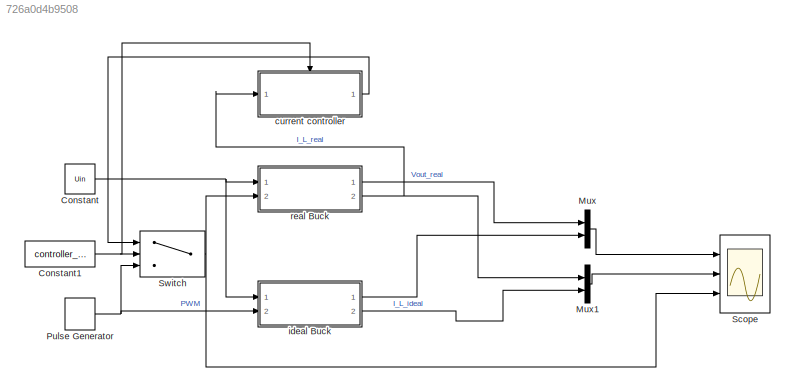
MODEL slx_726a0d4b9508
KIND model
CONFIG AbsTol = auto
CONFIG FixedStep = auto
CONFIG MaxStep = auto
CONFIG MinStep = auto
CONFIG RelTol = 1e-3
CONFIG SampleTimeConstraint = Unconstrained
CONFIG Solver = VariableStepAuto
CONFIG SolverMode = Auto
CONFIG SolverName = VariableStepAuto
CONFIG StartTime = 0.0
CONFIG StopTime = 0.01
BLOCK [Constant] Constant
  Value = Uin
BLOCK [Constant] Constant1
  Value = controller_on
BLOCK [Mux] Mux
  DisplayOption = signals
  Inputs = 2
  Ports = [2, 1]
BLOCK [Mux] Mux1
  DisplayOption = signals
  Inputs = 2
  Ports = [2, 1]
BLOCK [DiscretePulseGenerator] Pulse Generator
  Amplitude = Uswitch
  Period = T
  PhaseDelay = T
  Ports = [0, 1]
  PulseType = Time based
  PulseWidth = D*100
BLOCK [Scope] Scope
  NumInputPorts = 3
  Ports = [3]
  ScopeSpecificationString = Simulink.scopes.TimeScopeBlockCfg('CurrentConfiguration', extmgr.ConfigurationSet(extmgr.Configuration('Core','General UI',true),extmgr.Configuration('Core','Source UI',true),extmgr.Configuration('Sources','WiredSimulink',true),extmgr.Configuration('Visuals','Time Domain',true,'SerializedDisplays',{struct('MinYLimReal','-12.37862','MaxYLimReal','111.40759','YLabelReal','','MinYLimMag','0.00000','M...<+2719ch>
BLOCK [Switch] Switch
  InputSameDT = off
  SaturateOnIntegerOverflow = off
  Threshold = 0.5
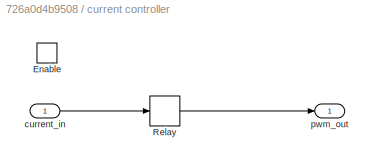
BLOCK [SubSystem] current controller
  Ports = [1, 1, 1]
  RequestExecContextInheritance = off
  Variant = off
BLOCK [EnablePort] current controller/Enable
  Ports = []
BLOCK [Relay] current controller/Relay
  InputProcessing = Elements as channels (sample based)
  OffOutputValue = Uswitch
  OffSwitchValue = 0
  OnOutputValue = 0
  OnSwitchValue = current_sense
BLOCK [Inport] current controller/current_in
  IconDisplay = Port number
BLOCK [Outport] current controller/pwm_out
  IconDisplay = Port number
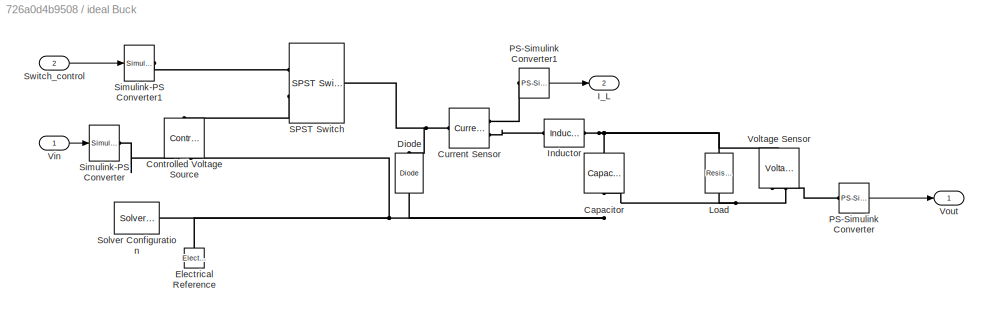
BLOCK [SubSystem] ideal Buck
  Ports = [2, 2]
  RequestExecContextInheritance = off
  Variant = off
BLOCK [Outport] ideal Buck/ Vout
  IconDisplay = Port number
BLOCK [Reference] ideal Buck/Capacitor  REF=fl_lib/Electrical/Electrical Elements/Capacitor
  Ports = [0, 0, 0, 0, 0, 1, 1]
  SourceBlock = fl_lib/Electrical/Electrical Elements/Capacitor
  SourceType = Capacitor
BLOCK [Reference] ideal Buck/Controlled Voltage Source  REF=fl_lib/Electrical/Electrical Sources/Controlled Voltage
Source
  Ports = [0, 0, 0, 0, 0, 1, 2]
  SourceBlock = fl_lib/Electrical/Electrical Sources/Controlled Voltage\nSource
  SourceType = Controlled Voltage\nSource
BLOCK [Reference] ideal Buck/Current Sensor  REF=fl_lib/Electrical/Electrical Sensors/Current Sensor
  Ports = [0, 0, 0, 0, 0, 1, 2]
  SourceBlock = fl_lib/Electrical/Electrical Sensors/Current Sensor
  SourceType = Current Sensor
BLOCK [Reference] ideal Buck/Diode  REF=fl_lib/Electrical/Electrical Elements/Diode
  Ports = [0, 0, 0, 0, 0, 1, 1]
  SourceBlock = fl_lib/Electrical/Electrical Elements/Diode
  SourceType = Diode
BLOCK [Reference] ideal Buck/Electrical Reference  REF=fl_lib/Electrical/Electrical Elements/Electrical Reference
  Ports = [0, 0, 0, 0, 0, 1]
  SourceBlock = fl_lib/Electrical/Electrical Elements/Electrical Reference
  SourceType = Electrical Reference
BLOCK [Outport] ideal Buck/I_L
  IconDisplay = Port number
  Port = 2
BLOCK [Reference] ideal Buck/Inductor  REF=fl_lib/Electrical/Electrical Elements/Inductor
  Ports = [0, 0, 0, 0, 0, 1, 1]
  SourceBlock = fl_lib/Electrical/Electrical Elements/Inductor
  SourceType = Inductor
BLOCK [Reference] ideal Buck/Load  REF=fl_lib/Electrical/Electrical Elements/Resistor
  Ports = [0, 0, 0, 0, 0, 1, 1]
  SourceBlock = fl_lib/Electrical/Electrical Elements/Resistor
  SourceType = Resistor
BLOCK [Reference] ideal Buck/PS-Simulink Converter  REF=nesl_utility/PS-Simulink
Converter
  Ports = [0, 1, 0, 0, 0, 1]
  SourceBlock = nesl_utility/PS-Simulink\nConverter
  SourceType = PS-Simulink\nConverter
BLOCK [Reference] ideal Buck/PS-Simulink Converter1  REF=nesl_utility/PS-Simulink
Converter
  Ports = [0, 1, 0, 0, 0, 1]
  SourceBlock = nesl_utility/PS-Simulink\nConverter
  SourceType = PS-Simulink\nConverter
BLOCK [Reference] ideal Buck/SPST Switch  REF=elec_lib/Passive Devices/Switches/SPST Switch
  Ports = [0, 0, 0, 0, 0, 2, 1]
  SourceBlock = elec_lib/Passive Devices/Switches/SPST Switch
  SourceType = SPST Switch
BLOCK [Reference] ideal Buck/Simulink-PS Converter  REF=nesl_utility/Simulink-PS
Converter
  Ports = [1, 0, 0, 0, 0, 0, 1]
  SourceBlock = nesl_utility/Simulink-PS\nConverter
  SourceType = Simulink-PS\nConverter
BLOCK [Reference] ideal Buck/Simulink-PS Converter1  REF=nesl_utility/Simulink-PS
Converter
  Ports = [1, 0, 0, 0, 0, 0, 1]
  SourceBlock = nesl_utility/Simulink-PS\nConverter
  SourceType = Simulink-PS\nConverter
BLOCK [Reference] ideal Buck/Solver Configuration  REF=nesl_utility/Solver
Configuration
  Ports = [0, 0, 0, 0, 0, 0, 1]
  SourceBlock = nesl_utility/Solver\nConfiguration
  SourceType = Solver\nConfiguration
BLOCK [Inport] ideal Buck/Switch_control
  IconDisplay = Port number
  Port = 2
BLOCK [Inport] ideal Buck/Vin
  IconDisplay = Port number
BLOCK [Reference] ideal Buck/Voltage Sensor  REF=fl_lib/Electrical/Electrical Sensors/Voltage Sensor
  Ports = [0, 0, 0, 0, 0, 1, 2]
  SourceBlock = fl_lib/Electrical/Electrical Sensors/Voltage Sensor
  SourceType = Voltage Sensor
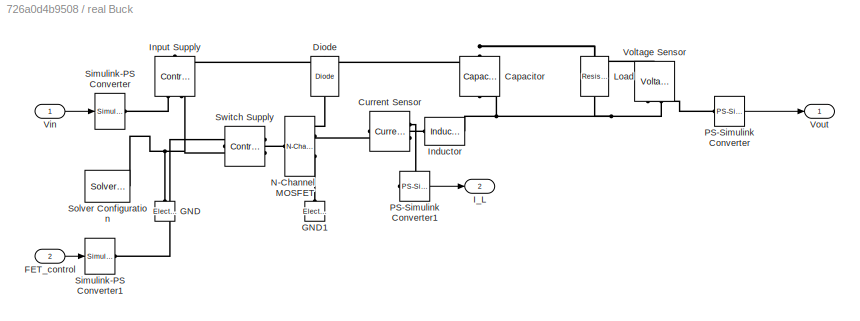
BLOCK [SubSystem] real Buck
  Ports = [2, 2]
  RequestExecContextInheritance = off
  Variant = off
BLOCK [Reference] real Buck/Capacitor  REF=fl_lib/Electrical/Electrical Elements/Capacitor
  Ports = [0, 0, 0, 0, 0, 1, 1]
  SourceBlock = fl_lib/Electrical/Electrical Elements/Capacitor
  SourceType = Capacitor
BLOCK [Reference] real Buck/Current Sensor  REF=fl_lib/Electrical/Electrical Sensors/Current Sensor
  Ports = [0, 0, 0, 0, 0, 1, 2]
  SourceBlock = fl_lib/Electrical/Electrical Sensors/Current Sensor
  SourceType = Current Sensor
BLOCK [Reference] real Buck/Diode  REF=elec_lib/Semiconductor
Devices/Diode
  Ports = [0, 0, 0, 0, 0, 1, 1]
  SourceBlock = elec_lib/Semiconductor\nDevices/Diode
  SourceType = Diode
BLOCK [Inport] real Buck/FET_control
  IconDisplay = Port number
  Port = 2
BLOCK [Reference] real Buck/GND  REF=fl_lib/Electrical/Electrical Elements/Electrical Reference
  Ports = [0, 0, 0, 0, 0, 1]
  SourceBlock = fl_lib/Electrical/Electrical Elements/Electrical Reference
  SourceType = Electrical Reference
BLOCK [Reference] real Buck/GND1  REF=fl_lib/Electrical/Electrical Elements/Electrical Reference
  Ports = [0, 0, 0, 0, 0, 1]
  SourceBlock = fl_lib/Electrical/Electrical Elements/Electrical Reference
  SourceType = Electrical Reference
BLOCK [Outport] real Buck/I_L
  IconDisplay = Port number
  Port = 2
BLOCK [Reference] real Buck/Inductor  REF=fl_lib/Electrical/Electrical Elements/Inductor
  Ports = [0, 0, 0, 0, 0, 1, 1]
  SourceBlock = fl_lib/Electrical/Electrical Elements/Inductor
  SourceType = Inductor
BLOCK [Reference] real Buck/Input Supply  REF=fl_lib/Electrical/Electrical Sources/Controlled Voltage
Source
  Ports = [0, 0, 0, 0, 0, 1, 2]
  SourceBlock = fl_lib/Electrical/Electrical Sources/Controlled Voltage\nSource
  SourceType = Controlled Voltage\nSource
BLOCK [Reference] real Buck/Load  REF=fl_lib/Electrical/Electrical Elements/Resistor
  Ports = [0, 0, 0, 0, 0, 1, 1]
  SourceBlock = fl_lib/Electrical/Electrical Elements/Resistor
  SourceType = Resistor
BLOCK [Reference] real Buck/N-Channel MOSFET  REF=elec_lib/Semiconductor
Devices/N-Channel MOSFET
  Ports = [0, 0, 0, 0, 0, 1, 2]
  SourceBlock = elec_lib/Semiconductor\nDevices/N-Channel MOSFET
  SourceType = N-Channel MOSFET
BLOCK [Reference] real Buck/PS-Simulink Converter  REF=nesl_utility/PS-Simulink
Converter
  Ports = [0, 1, 0, 0, 0, 1]
  SourceBlock = nesl_utility/PS-Simulink\nConverter
  SourceType = PS-Simulink\nConverter
BLOCK [Reference] real Buck/PS-Simulink Converter1  REF=nesl_utility/PS-Simulink
Converter
  Ports = [0, 1, 0, 0, 0, 1]
  SourceBlock = nesl_utility/PS-Simulink\nConverter
  SourceType = PS-Simulink\nConverter
BLOCK [Reference] real Buck/Simulink-PS Converter  REF=nesl_utility/Simulink-PS
Converter
  Ports = [1, 0, 0, 0, 0, 0, 1]
  SourceBlock = nesl_utility/Simulink-PS\nConverter
  SourceType = Simulink-PS\nConverter
BLOCK [Reference] real Buck/Simulink-PS Converter1  REF=nesl_utility/Simulink-PS
Converter
  Ports = [1, 0, 0, 0, 0, 0, 1]
  SourceBlock = nesl_utility/Simulink-PS\nConverter
  SourceType = Simulink-PS\nConverter
BLOCK [Reference] real Buck/Solver Configuration  REF=nesl_utility/Solver
Configuration
  Ports = [0, 0, 0, 0, 0, 0, 1]
  SourceBlock = nesl_utility/Solver\nConfiguration
  SourceType = Solver\nConfiguration
BLOCK [Reference] real Buck/Switch Supply  REF=fl_lib/Electrical/Electrical Sources/Controlled Voltage
Source
  Ports = [0, 0, 0, 0, 0, 1, 2]
  SourceBlock = fl_lib/Electrical/Electrical Sources/Controlled Voltage\nSource
  SourceType = Controlled Voltage\nSource
BLOCK [Inport] real Buck/Vin
  IconDisplay = Port number
BLOCK [Reference] real Buck/Voltage Sensor  REF=fl_lib/Electrical/Electrical Sensors/Voltage Sensor
  Ports = [0, 0, 0, 0, 0, 1, 2]
  SourceBlock = fl_lib/Electrical/Electrical Sensors/Voltage Sensor
  SourceType = Voltage Sensor
BLOCK [Outport] real Buck/Vout
  IconDisplay = Port number
NET Constant1:1 -> Switch:2, current controller:enable
NET Constant:1 -> ideal Buck:1, real Buck:1
LINE Mux1:1 -> Scope:2
LINE Mux:1 -> Scope:1
NET Pulse Generator:1 -> Switch:3, ideal Buck:2
NET Switch:1 -> Scope:3, real Buck:2
LINE current controller/Relay:1 -> current controller/pwm_out:1
LINE current controller/current_in:1 -> current controller/Relay:1
LINE current controller:1 -> Switch:1
LINE ideal Buck/PS-Simulink Converter1:1 -> ideal Buck/I_L:1
LINE ideal Buck/PS-Simulink Converter:1 -> ideal Buck/ Vout:1
LINE ideal Buck/Switch_control:1 -> ideal Buck/Simulink-PS Converter1:1
LINE ideal Buck/Vin:1 -> ideal Buck/Simulink-PS Converter:1
LINE ideal Buck:1 -> Mux:2
LINE ideal Buck:2 -> Mux1:2
LINE real Buck/FET_control:1 -> real Buck/Simulink-PS Converter1:1
LINE real Buck/PS-Simulink Converter1:1 -> real Buck/I_L:1
LINE real Buck/PS-Simulink Converter:1 -> real Buck/Vout:1
LINE real Buck/Vin:1 -> real Buck/Simulink-PS Converter:1
LINE real Buck:1 -> Mux:1
NET real Buck:2 -> Mux1:1, current controller:1
PNET net1: ideal Buck/Capacitor:LConn1 -- ideal Buck/Inductor:RConn1 -- ideal Buck/Load:LConn1 -- ideal Buck/Voltage Sensor:LConn1
PNET net2: ideal Buck/Capacitor:RConn1 -- ideal Buck/Controlled Voltage Source:RConn2 -- ideal Buck/Diode:LConn1 -- ideal Buck/Electrical Reference:LConn1 -- ideal Buck/Load:RConn1 -- ideal Buck/Solver Configuration:RConn1 -- ideal Buck/Voltage Sensor:RConn2
PLINE ideal Buck/Controlled Voltage Source:LConn1 -- ideal Buck/SPST Switch:LConn2
PLINE ideal Buck/Controlled Voltage Source:RConn1 -- ideal Buck/Simulink-PS Converter:RConn1
PNET net3: ideal Buck/Current Sensor:LConn1 -- ideal Buck/Diode:RConn1 -- ideal Buck/SPST Switch:RConn1
PLINE ideal Buck/Current Sensor:RConn1 -- ideal Buck/PS-Simulink Converter1:LConn1
PLINE ideal Buck/Current Sensor:RConn2 -- ideal Buck/Inductor:LConn1
PLINE ideal Buck/PS-Simulink Converter:LConn1 -- ideal Buck/Voltage Sensor:RConn1
PLINE ideal Buck/SPST Switch:LConn1 -- ideal Buck/Simulink-PS Converter1:RConn1
PNET net4: real Buck/Capacitor:LConn1 -- real Buck/Diode:RConn1 -- real Buck/Input Supply:LConn1 -- real Buck/Load:LConn1 -- real Buck/Voltage Sensor:LConn1
PNET net5: real Buck/Capacitor:RConn1 -- real Buck/Inductor:LConn1 -- real Buck/Load:RConn1 -- real Buck/Voltage Sensor:RConn2
PLINE real Buck/Current Sensor:LConn1 -- real Buck/Inductor:RConn1
PLINE real Buck/Current Sensor:RConn1 -- real Buck/PS-Simulink Converter1:LConn1
PNET net6: real Buck/Current Sensor:RConn2 -- real Buck/Diode:LConn1 -- real Buck/N-Channel MOSFET:RConn1
PLINE real Buck/GND1:LConn1 -- real Buck/N-Channel MOSFET:RConn2
PNET net7: real Buck/GND:LConn1 -- real Buck/Input Supply:RConn2 -- real Buck/Solver Configuration:RConn1 -- real Buck/Switch Supply:RConn2
PLINE real Buck/Input Supply:RConn1 -- real Buck/Simulink-PS Converter:RConn1
PLINE real Buck/N-Channel MOSFET:LConn1 -- real Buck/Switch Supply:LConn1
PLINE real Buck/PS-Simulink Converter:LConn1 -- real Buck/Voltage Sensor:RConn1
PLINE real Buck/Simulink-PS Converter1:RConn1 -- real Buck/Switch Supply:RConn1
note: NET lines group one-source signal fan-out (src -> all destinations, sorted); 1:1 wires keep LINE; PNET lines group multi-terminal physical nets as a canonical sorted terminal list (undirected conserving connections); 2-terminal nets keep the pairwise PLINE form
